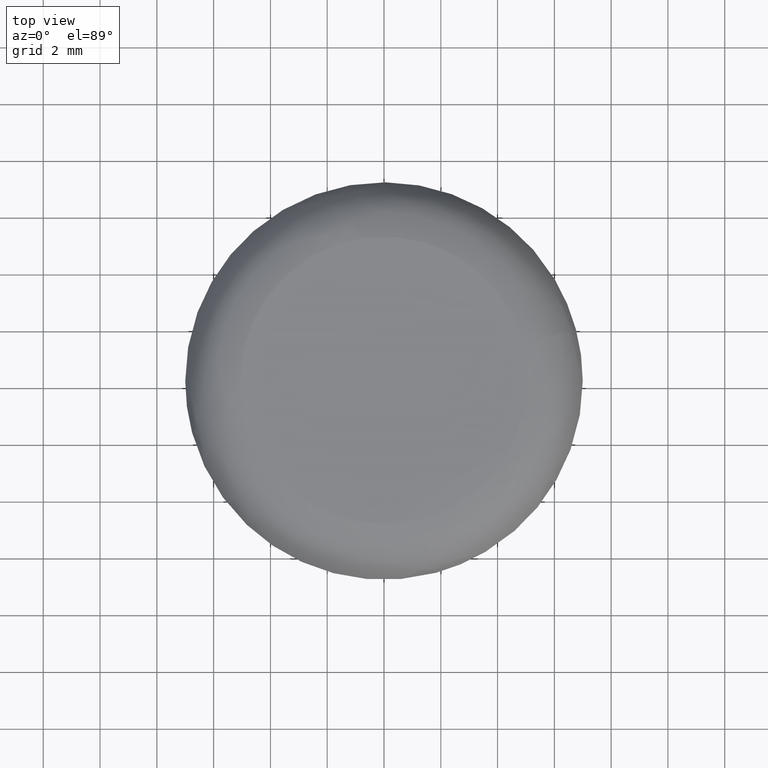
[diagram: clean part render]
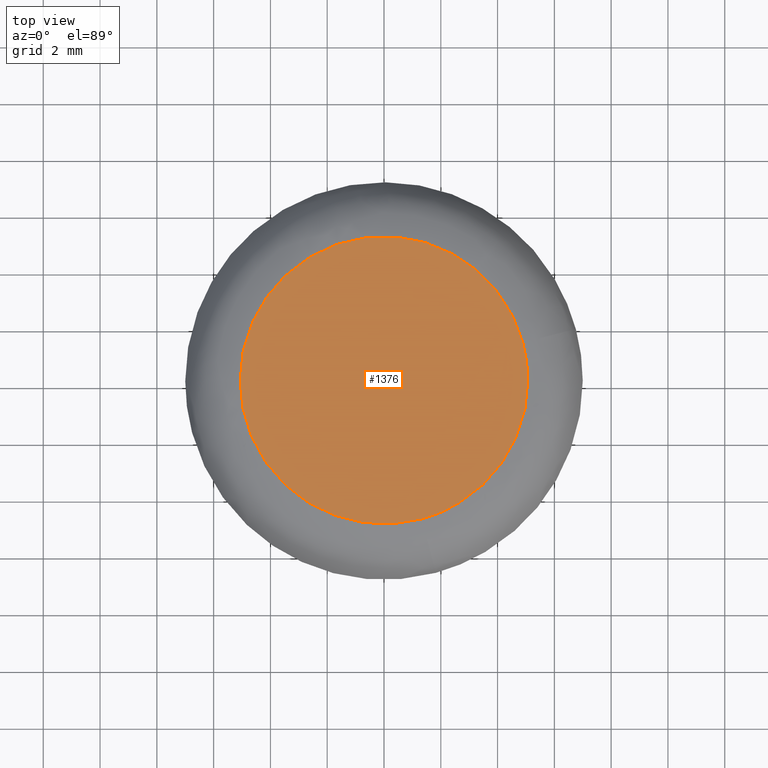
[diagram: same view with one face highlighted and labeled with its STEP entity id]
A machine part, top view. The second image highlights one B-rep face of the part: STEP entity #1376.
In plain terms, the highlighted face is a freeform B-spline surface patch.
Its self-contained STEP definition (entity closure, byte-faithful):
#73=CARTESIAN_POINT('',(1.320772793002441,-4.888216685931189,1.499999999999702));
#74=VERTEX_POINT('',#73);
#75=CARTESIAN_POINT('',(-5.063507000000000,0.0,1.499999999999702));
#76=VERTEX_POINT('',#75);
#77=CARTESIAN_POINT('',(1.320772793002441,-4.888216685931189,1.499999999999702));
#78=CARTESIAN_POINT('',(0.672018485826649,-5.063507000000000,1.499999999999703));
#79=CARTESIAN_POINT('',(0.0,-5.063507000000000,1.499999999999702));
#80=CARTESIAN_POINT('',(-5.063507000000000,-5.063507000000000,1.499999999999703));
#81=CARTESIAN_POINT('',(-5.063507000000000,0.0,1.499999999999702));
#89=(BOUNDED_CURVE()B_SPLINE_CURVE(2,(#77,#78,#79,#80,#81),.UNSPECIFIED.,.F.,.U.)B_SPLINE_CURVE_WITH_KNOTS((3,2,3),(0.705522207670522,0.750000000000000,1.0),.UNSPECIFIED.)CURVE()GEOMETRIC_REPRESENTATION_ITEM()RATIONAL_B_SPLINE_CURVE((0.914323587275434,0.947891024955612,1.0,0.707106781186548,1.0))REPRESENTATION_ITEM(''));
#90=EDGE_CURVE('',#74,#76,#89,.T.);
#92=CARTESIAN_POINT('',(4.888216685964117,1.320772793019216,1.499999999999701));
#93=VERTEX_POINT('',#92);
#94=CARTESIAN_POINT('',(-5.063507000000000,0.0,1.499999999999702));
#95=CARTESIAN_POINT('',(-5.063507000000000,5.063507000000000,1.499999999999703));
#96=CARTESIAN_POINT('',(0.0,5.063507000000000,1.499999999999702));
#97=CARTESIAN_POINT('',(3.876947785659141,5.063507000000000,1.499999999999702));
#98=CARTESIAN_POINT('',(4.888216685964118,1.320772793019216,1.499999999999702));
#106=(BOUNDED_CURVE()B_SPLINE_CURVE(2,(#94,#95,#96,#97,#98),.UNSPECIFIED.,.F.,.U.)B_SPLINE_CURVE_WITH_KNOTS((3,2,3),(0.0,0.250000000000000,0.455522207670037),.UNSPECIFIED.)CURVE()GEOMETRIC_REPRESENTATION_ITEM()RATIONAL_B_SPLINE_CURVE((1.0,0.707106781186548,1.0,0.759215756231504,0.914323587274701))REPRESENTATION_ITEM(''));
#107=EDGE_CURVE('',#76,#93,#106,.T.);
#191=CARTESIAN_POINT('',(5.063507000000000,0.0,1.499999999999702));
#192=VERTEX_POINT('',#191);
#193=CARTESIAN_POINT('',(5.063507000000000,0.0,1.499999999999702));
#194=CARTESIAN_POINT('',(5.063507000000000,-3.876947785671221,1.499999999999703));
#195=CARTESIAN_POINT('',(1.320772793002442,-4.888216685931189,1.499999999999702));
#203=(BOUNDED_CURVE()B_SPLINE_CURVE(2,(#193,#194,#195),.UNSPECIFIED.,.F.,.U.)B_SPLINE_CURVE_WITH_KNOTS((3,3),(0.500000000000000,0.705522207670523),.UNSPECIFIED.)CURVE()GEOMETRIC_REPRESENTATION_ITEM()RATIONAL_B_SPLINE_CURVE((1.0,0.759215756230935,0.914323587275435))REPRESENTATION_ITEM(''));
#204=EDGE_CURVE('',#192,#74,#203,.T.);
#236=CARTESIAN_POINT('',(4.888216685964117,1.320772793019216,1.499999999999702));
#237=CARTESIAN_POINT('',(5.063507000000001,0.672018485834388,1.499999999999702));
#238=CARTESIAN_POINT('',(5.063507000000000,0.0,1.499999999999702));
#246=(BOUNDED_CURVE()B_SPLINE_CURVE(2,(#236,#237,#238),.UNSPECIFIED.,.F.,.U.)B_SPLINE_CURVE_WITH_KNOTS((3,3),(0.455522207670037,0.500000000000000),.UNSPECIFIED.)CURVE()GEOMETRIC_REPRESENTATION_ITEM()RATIONAL_B_SPLINE_CURVE((0.914323587274701,0.947891024955043,1.0))REPRESENTATION_ITEM(''));
#247=EDGE_CURVE('',#93,#192,#246,.T.);
#1365=CARTESIAN_POINT('',(-5.569351424737045,-5.568200535096270,1.499999999999702));
#1366=CARTESIAN_POINT('',(5.569351605822166,-5.568200535096270,1.499999999999702));
#1367=CARTESIAN_POINT('',(-5.569351424737045,5.565855836792690,1.499999999999702));
#1368=CARTESIAN_POINT('',(5.569351605822166,5.565855836792691,1.499999999999702));
#1369=B_SPLINE_SURFACE_WITH_KNOTS('',1,1,((#1365,#1367),(#1366,#1368)),.UNSPECIFIED.,.F.,.F.,.U.,(2,2),(2,2),(0.0,11.138703030559210),(0.0,11.134056371888960),.UNSPECIFIED.);
#1370=ORIENTED_EDGE('',*,*,#204,.F.);
#1371=ORIENTED_EDGE('',*,*,#247,.F.);
#1372=ORIENTED_EDGE('',*,*,#107,.F.);
#1373=ORIENTED_EDGE('',*,*,#90,.F.);
#1374=EDGE_LOOP('',(#1370,#1371,#1372,#1373));
#1375=FACE_OUTER_BOUND('',#1374,.T.);
#1376=ADVANCED_FACE('',(#1375),#1369,.T.);